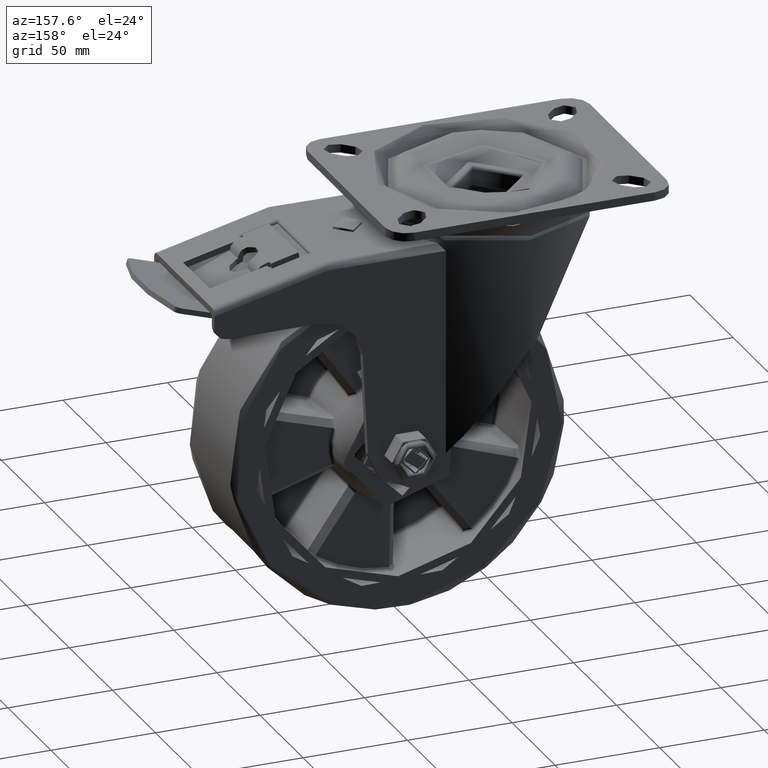
[diagram: clean part render]
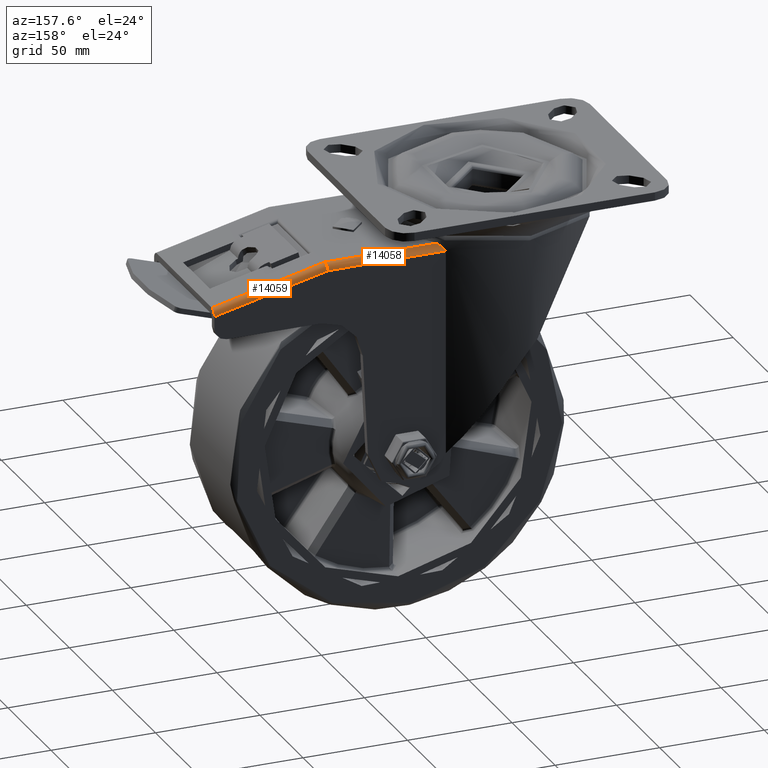
[diagram: same view with one multi-face feature highlighted, each face labeled with its STEP entity id]
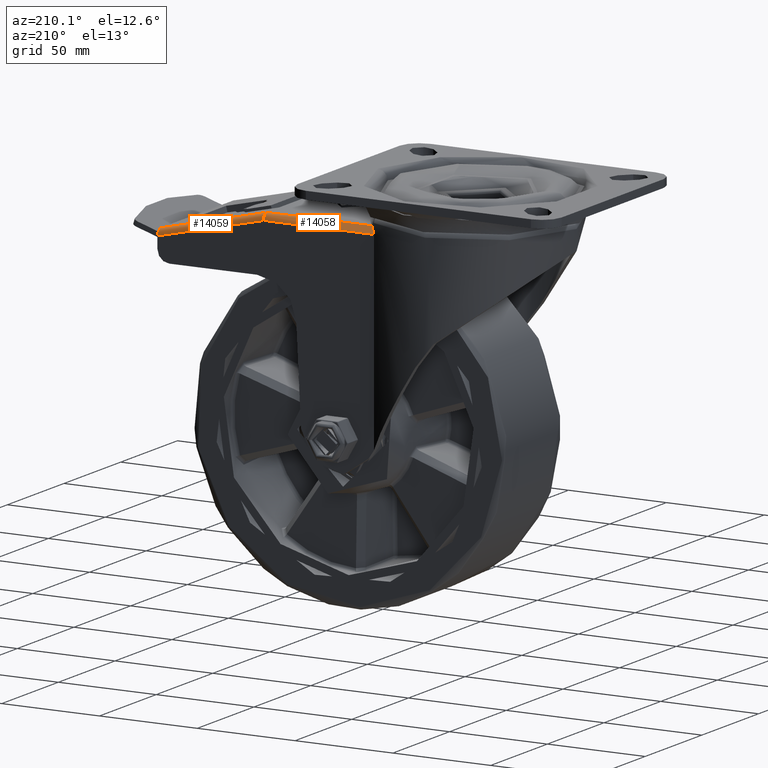
[diagram: same view with one multi-face feature highlighted, each face labeled with its STEP entity id]
A machine part, auxiliary view. The highlighted faces form ONE feature: a constant-radius fillet chain: 2 tangent blend faces with common blend radius 3 mm. The faces share edges in the B-rep.
A second angle (auxiliary view) of the same feature is appended — it is thin or edge-on in the first view.
Their STEP definitions:
[1] entity #14058 (Cylinder):
#49=ELLIPSE('',#15410,3.0210518061685,3.);
#1332=B_SPLINE_CURVE_WITH_KNOTS('',3,(#24491,#24492,#24493,#24494,#24495,
#24496,#24497,#24498,#24499,#24500),.UNSPECIFIED.,.F.,.F.,(4,2,2,2,4),(-0.538140871028254,
-0.38178062667546,-0.225420382322665,-0.112710191161333,0.),
 .UNSPECIFIED.);
#2007=FACE_OUTER_BOUND('',#2922,.T.);
#2922=EDGE_LOOP('',(#10291,#10292,#10293,#10294));
#4004=LINE('',#24575,#4724);
#4008=LINE('',#24645,#4728);
#4724=VECTOR('',#17646,10.);
#4728=VECTOR('',#17668,10.);
#6349=VERTEX_POINT('',#24488);
#6350=VERTEX_POINT('',#24490);
#6355=VERTEX_POINT('',#24555);
#6370=VERTEX_POINT('',#24644);
#7806=EDGE_CURVE('',#6350,#6349,#1332,.F.);
#7823=EDGE_CURVE('',#6349,#6355,#4004,.T.);
#7835=EDGE_CURVE('',#6370,#6350,#4008,.T.);
#7836=EDGE_CURVE('',#6355,#6370,#49,.T.);
#10291=ORIENTED_EDGE('',*,*,#7835,.T.);
#10292=ORIENTED_EDGE('',*,*,#7806,.T.);
#10293=ORIENTED_EDGE('',*,*,#7823,.T.);
#10294=ORIENTED_EDGE('',*,*,#7836,.T.);
#13743=CYLINDRICAL_SURFACE('',#15409,3.);
#14058=ADVANCED_FACE('',(#2007),#13743,.T.);
#15409=AXIS2_PLACEMENT_3D('',#24643,#17666,#17667);
#15410=AXIS2_PLACEMENT_3D('',#24646,#17669,#17670);
#17646=DIRECTION('',(1.,4.36704234538591E-16,0.));
#17666=DIRECTION('center_axis',(-1.,-4.36704234538591E-16,0.));
#17667=DIRECTION('ref_axis',(0.,0.707106781186547,0.707106781186547));
#17668=DIRECTION('',(-1.,-4.36704234538591E-16,0.));
#17669=DIRECTION('center_axis',(-0.99303163020061,0.,0.117848128627993));
#17670=DIRECTION('ref_axis',(0.117848128627993,3.70565268725751E-15,0.993031630200609));
#24488=CARTESIAN_POINT('',(37.1079506305589,32.,-18.));
#24490=CARTESIAN_POINT('',(34.2928563989645,35.,-21.));
#24491=CARTESIAN_POINT('Ctrl Pts',(37.1079506305589,32.,-18.));
#24492=CARTESIAN_POINT('Ctrl Pts',(36.7675745884304,32.3947080427228,-18.));
#24493=CARTESIAN_POINT('Ctrl Pts',(36.3932034480828,32.8148877588012,-18.081456711756));
#24494=CARTESIAN_POINT('Ctrl Pts',(35.6733279583831,33.5960680470059,-18.4242469636502));
#24495=CARTESIAN_POINT('Ctrl Pts',(35.3278600717912,33.9574224623524,-18.6848502273011));
#24496=CARTESIAN_POINT('Ctrl Pts',(34.8404374702012,34.4561932837057,-19.2488352353572));
#24497=CARTESIAN_POINT('Ctrl Pts',(34.6441669887306,34.652836563924,-19.5511800884279));
#24498=CARTESIAN_POINT('Ctrl Pts',(34.3696041611405,34.9251728332499,-20.2384328040636));
#24499=CARTESIAN_POINT('Ctrl Pts',(34.2928563989645,35.,-20.6242993627956));
#24500=CARTESIAN_POINT('Ctrl Pts',(34.2928563989645,35.,-21.));
#24555=CARTESIAN_POINT('',(91.,32.,-18.));
#24575=CARTESIAN_POINT('',(26.0553851381374,32.,-18.));
#24643=CARTESIAN_POINT('Origin',(26.0553851381374,32.,-21.));
#24644=CARTESIAN_POINT('',(90.6439746981548,35.,-21.));
#24645=CARTESIAN_POINT('',(26.0553851381374,35.,-21.));
#24646=CARTESIAN_POINT('Origin',(90.6439746981548,32.,-21.));
[2] entity #14059 (Cylinder):
#49=ELLIPSE('',#15410,3.0210518061685,3.);
#50=ELLIPSE('',#15412,3.08570979488863,3.);
#2008=FACE_OUTER_BOUND('',#2923,.T.);
#2923=EDGE_LOOP('',(#10295,#10296,#10297,#10298));
#3994=LINE('',#24556,#4714);
#4009=LINE('',#24650,#4729);
#4714=VECTOR('',#17634,10.);
#4729=VECTOR('',#17675,10.);
#6354=VERTEX_POINT('',#24553);
#6355=VERTEX_POINT('',#24555);
#6370=VERTEX_POINT('',#24644);
#6371=VERTEX_POINT('',#24648);
#7813=EDGE_CURVE('',#6355,#6354,#3994,.T.);
#7836=EDGE_CURVE('',#6355,#6370,#49,.T.);
#7837=EDGE_CURVE('',#6354,#6371,#50,.T.);
#7838=EDGE_CURVE('',#6371,#6370,#4009,.T.);
#10295=ORIENTED_EDGE('',*,*,#7813,.T.);
#10296=ORIENTED_EDGE('',*,*,#7837,.T.);
#10297=ORIENTED_EDGE('',*,*,#7838,.T.);
#10298=ORIENTED_EDGE('',*,*,#7836,.F.);
#13744=CYLINDRICAL_SURFACE('',#15411,3.);
#14059=ADVANCED_FACE('',(#2008),#13744,.T.);
#15410=AXIS2_PLACEMENT_3D('',#24646,#17669,#17670);
#15411=AXIS2_PLACEMENT_3D('',#24647,#17671,#17672);
#15412=AXIS2_PLACEMENT_3D('',#24649,#17673,#17674);
#17634=DIRECTION('',(0.972223637157778,4.24574179265312E-16,-0.23405383857502));
#17669=DIRECTION('center_axis',(-0.99303163020061,0.,0.117848128627993));
#17670=DIRECTION('ref_axis',(0.117848128627993,3.70565268725751E-15,0.993031630200609));
#17671=DIRECTION('center_axis',(0.972223637157778,4.24574179265312E-16,
-0.23405383857502));
#17672=DIRECTION('ref_axis',(0.165501056419138,0.707106781186548,0.687465926664114));
#17673=DIRECTION('center_axis',(-1.,0.,0.));
#17674=DIRECTION('ref_axis',(0.,-4.40748902381763E-15,1.));
#17675=DIRECTION('',(-0.972223637157778,-4.24574179265312E-16,0.23405383857502));
#24553=CARTESIAN_POINT('',(145.,32.,-31.));
#24555=CARTESIAN_POINT('',(91.,32.,-18.));
#24556=CARTESIAN_POINT('',(99.0910868923204,32.,-19.9478542518549));
#24644=CARTESIAN_POINT('',(90.6439746981548,35.,-21.));
#24646=CARTESIAN_POINT('Origin',(90.6439746981548,32.,-21.));
#24647=CARTESIAN_POINT('Origin',(98.3889253765954,32.,-22.8645251633283));
#24648=CARTESIAN_POINT('',(145.,35.,-34.0857097948886));
#24649=CARTESIAN_POINT('Origin',(145.,32.,-34.0857097948886));
#24650=CARTESIAN_POINT('',(98.3889253765954,35.,-22.8645251633283));